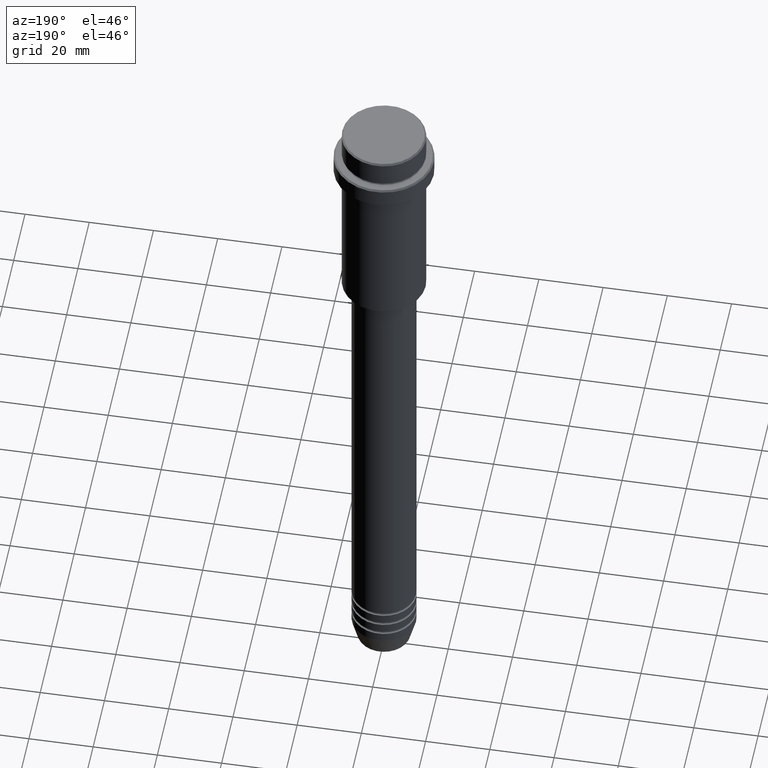
[diagram: clean part render]
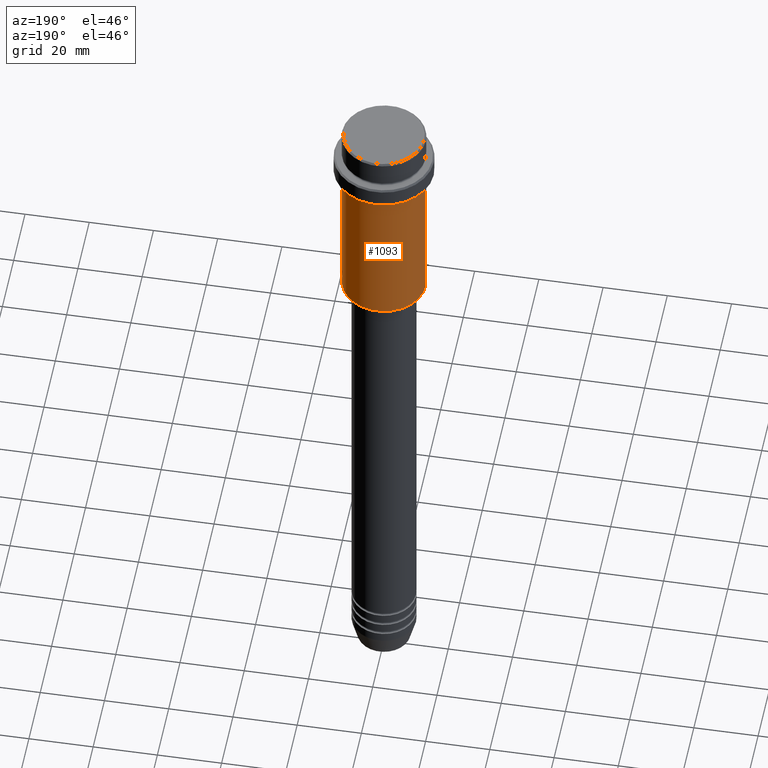
[diagram: same view with one face highlighted and labeled with its STEP entity id]
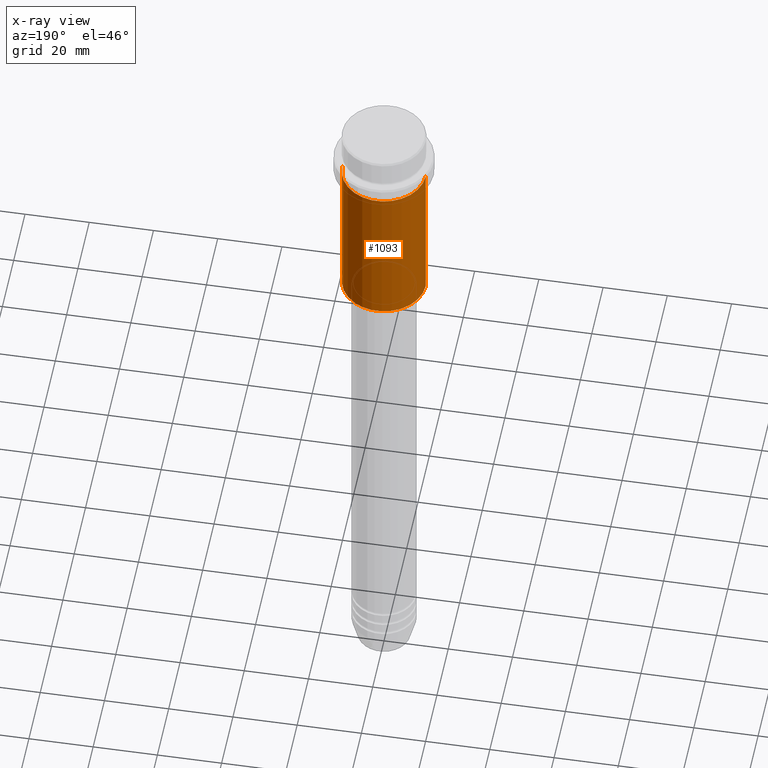
[diagram: x-ray of the same camera — body ghosted, the highlighted face saturated]
A machine part, auxiliary view. The second image highlights one B-rep face of the part: STEP entity #1093.
The next image is the same camera in x-ray: the body ghosted, the highlighted face saturated — about 0% of this face is hidden behind the body in this view.
In plain terms, the highlighted cylindrical surface (partial cylindrical patch) has radius 13 mm, axis along (-0, -0, 1).
Its self-contained STEP definition (entity closure, byte-faithful):
#9 = VERTEX_POINT ( 'NONE', #69 ) ;
#69 = CARTESIAN_POINT ( 'NONE',  ( -13.00000000000000000, 1.592040838891559095E-15, -64.49999999999997158 ) ) ;
#71 = ORIENTED_EDGE ( 'NONE', *, *, #626, .T. ) ;
#90 = CARTESIAN_POINT ( 'NONE',  ( 0.000000000000000000, 0.000000000000000000, -16.00000000000000000 ) ) ;
#132 = DIRECTION ( 'NONE',  ( -0.000000000000000000, -0.000000000000000000, 1.000000000000000000 ) ) ;
#150 = VECTOR ( 'NONE', #713, 1000.000000000000000 ) ;
#166 = LINE ( 'NONE', #474, #150 ) ;
#183 = CARTESIAN_POINT ( 'NONE',  ( 13.00000000000000000, 0.000000000000000000, -16.00000000000000000 ) ) ;
#208 = DIRECTION ( 'NONE',  ( -0.000000000000000000, -0.000000000000000000, 1.000000000000000000 ) ) ;
#281 = DIRECTION ( 'NONE',  ( 1.000000000000000000, 0.000000000000000000, 0.000000000000000000 ) ) ;
#294 = CIRCLE ( 'NONE', #865, 13.00000000000000000 ) ;
#314 = VERTEX_POINT ( 'NONE', #1080 ) ;
#413 = CIRCLE ( 'NONE', #957, 13.00000000000000000 ) ;
#420 = ORIENTED_EDGE ( 'NONE', *, *, #1095, .F. ) ;
#467 = ORIENTED_EDGE ( 'NONE', *, *, #903, .F. ) ;
#474 = CARTESIAN_POINT ( 'NONE',  ( 13.00000000000000000, 0.000000000000000000, 0.000000000000000000 ) ) ;
#479 = AXIS2_PLACEMENT_3D ( 'NONE', #1375, #827, #731 ) ;
#510 = FACE_OUTER_BOUND ( 'NONE', #1305, .T. ) ;
#537 = CYLINDRICAL_SURFACE ( 'NONE', #479, 13.00000000000000000 ) ;
#626 = EDGE_CURVE ( 'NONE', #9, #314, #738, .T. ) ;
#688 = VECTOR ( 'NONE', #208, 1000.000000000000000 ) ;
#697 = CARTESIAN_POINT ( 'NONE',  ( 0.000000000000000000, 0.000000000000000000, -64.49999999999997158 ) ) ;
#713 = DIRECTION ( 'NONE',  ( -0.000000000000000000, -0.000000000000000000, 1.000000000000000000 ) ) ;
#731 = DIRECTION ( 'NONE',  ( 1.000000000000000000, 0.000000000000000000, 0.000000000000000000 ) ) ;
#738 = LINE ( 'NONE', #1279, #688 ) ;
#827 = DIRECTION ( 'NONE',  ( -0.000000000000000000, -0.000000000000000000, 1.000000000000000000 ) ) ;
#865 = AXIS2_PLACEMENT_3D ( 'NONE', #90, #1391, #281 ) ;
#887 = VERTEX_POINT ( 'NONE', #921 ) ;
#894 = DIRECTION ( 'NONE',  ( -1.000000000000000000, 0.000000000000000000, 0.000000000000000000 ) ) ;
#903 = EDGE_CURVE ( 'NONE', #887, #1088, #166, .T. ) ;
#921 = CARTESIAN_POINT ( 'NONE',  ( 13.00000000000000000, 0.000000000000000000, -64.49999999999997158 ) ) ;
#957 = AXIS2_PLACEMENT_3D ( 'NONE', #697, #132, #894 ) ;
#1080 = CARTESIAN_POINT ( 'NONE',  ( -13.00000000000000000, 1.592040838891559095E-15, -16.00000000000000000 ) ) ;
#1088 = VERTEX_POINT ( 'NONE', #183 ) ;
#1093 = ADVANCED_FACE ( 'NONE', ( #510 ), #537, .T. ) ;
#1095 = EDGE_CURVE ( 'NONE', #1088, #314, #294, .T. ) ;
#1256 = ORIENTED_EDGE ( 'NONE', *, *, #1324, .T. ) ;
#1279 = CARTESIAN_POINT ( 'NONE',  ( -13.00000000000000000, 1.592040838891559095E-15, 0.000000000000000000 ) ) ;
#1305 = EDGE_LOOP ( 'NONE', ( #1256, #71, #420, #467 ) ) ;
#1324 = EDGE_CURVE ( 'NONE', #887, #9, #413, .T. ) ;
#1375 = CARTESIAN_POINT ( 'NONE',  ( 0.000000000000000000, 0.000000000000000000, 0.000000000000000000 ) ) ;
#1391 = DIRECTION ( 'NONE',  ( -0.000000000000000000, -0.000000000000000000, 1.000000000000000000 ) ) ;